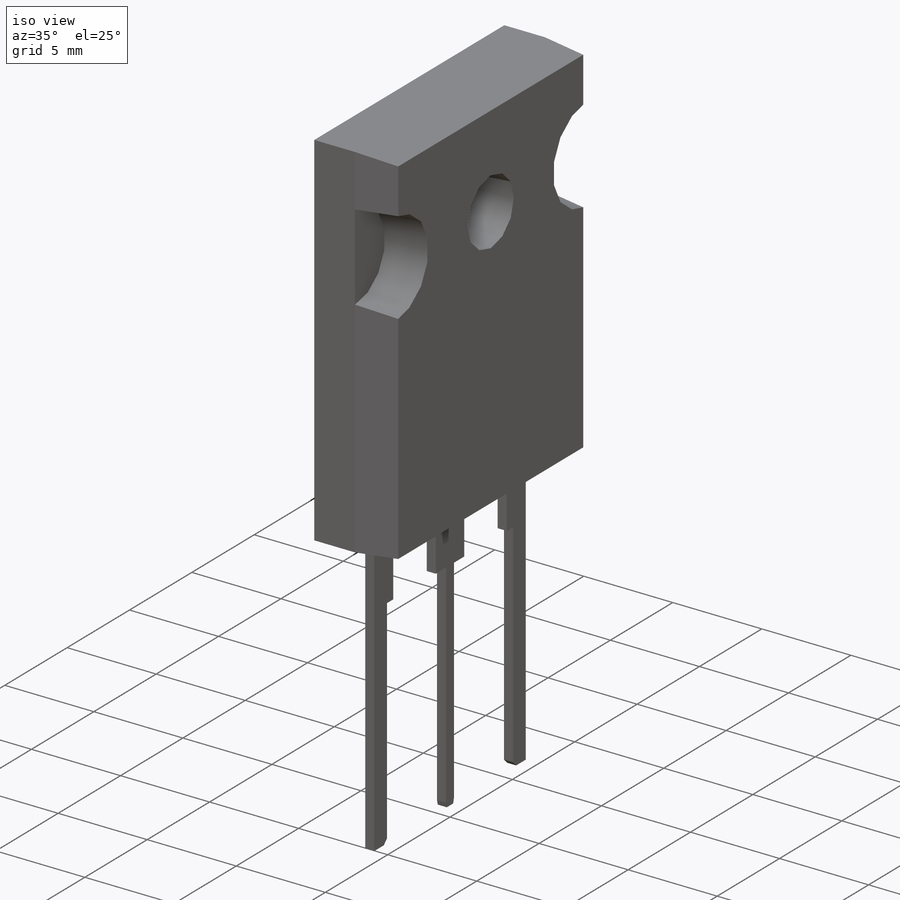
[diagram: iso view]
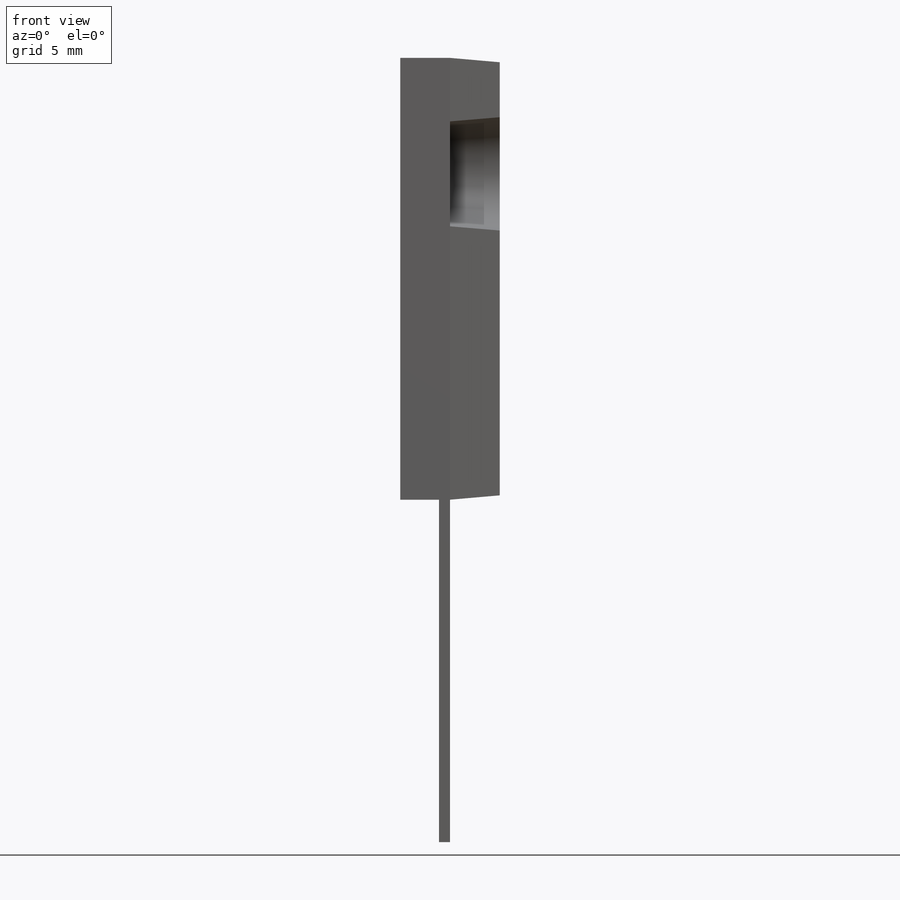
[diagram: front view]
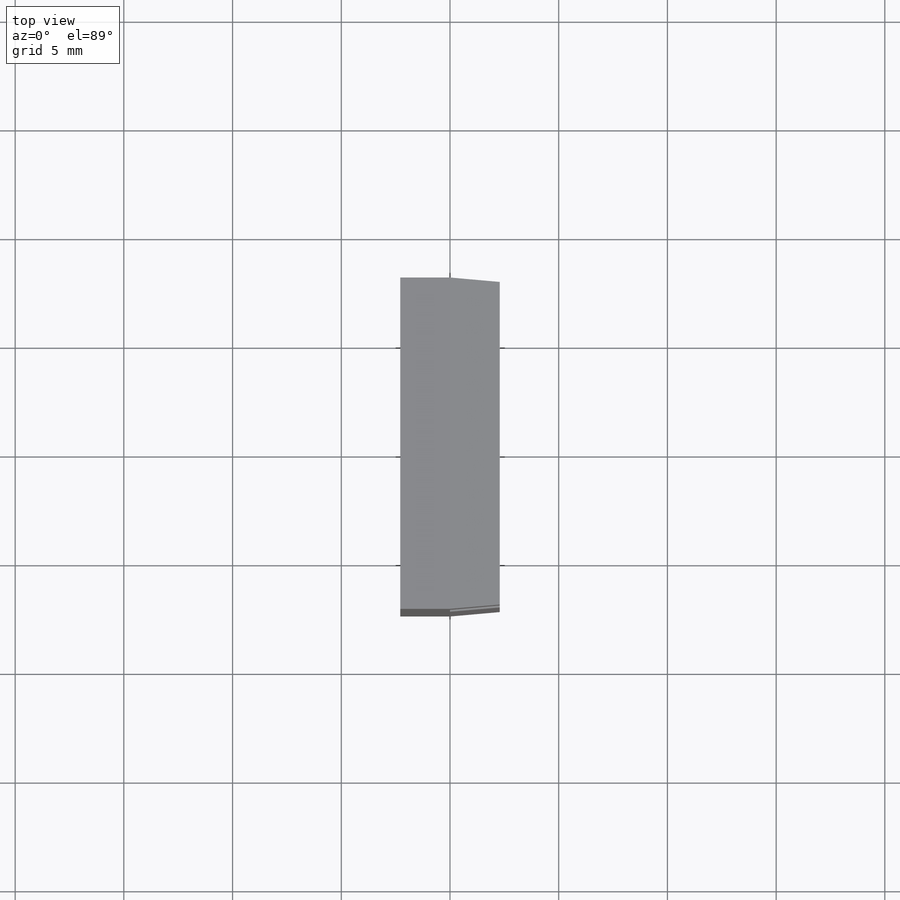
[diagram: top view]
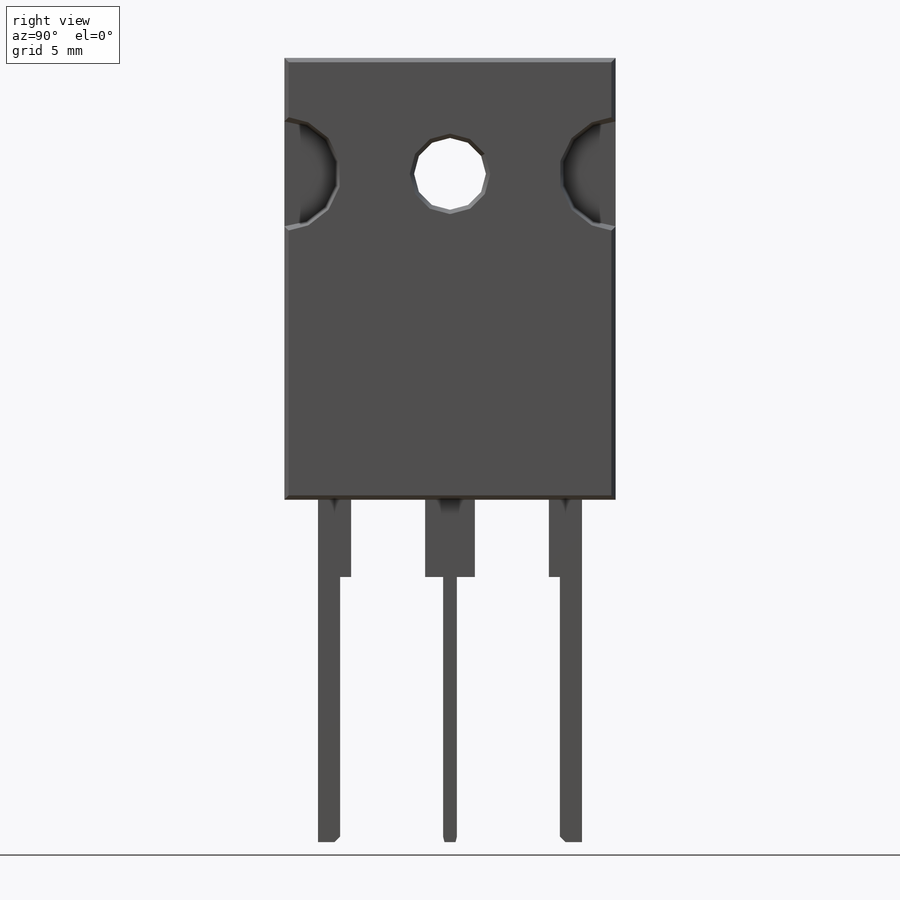
[diagram: right view]
SOLIDWORKS PART (.sldprt)
format: sldprt  version: not decoded by parser v0  size: 272,896 bytes
history: native  units: mm
features: sketch x8, extrude x3, cut_extrude x3, sheet_metal_op x2, material x1 + 1 further entry (+13 scaffold rows collapsed)
feature tree (31):
  scaffold x13  (default folders/planes/origin — collapsed)
  material  "Material <not specified>"
  sketch  "Sketch2"  dims[c1.D1=3.302mm c1.D4=3.302mm c1.D6=4.826mm c1.D2=7.62mm c1.D3=15.24mm c2.D4=5.334mm c2.D5=20.32mm c2.D1=5.334mm c2.D2=7.62mm c2.D3=2.921mm c3.D2=7.62mm]
  extrude  "Extrude1"  Depth=2.286mm
  sketch  "Sketch6"
  extrude  "Extrude2"  Depth=2.286mm
  sketch  "Sketch7"  dims[D1=3.302mm]
  cut_extrude  "Cut-Extrude3"  [1 undecoded]
  sketch  "Sketch9"  dims[D1=3.302mm]
  cut_extrude  "Cut-Extrude6"  Depth=2.286mm
  sketch  "Sketch10"  dims[D1=15.748mm D2=2.286mm]
  sheet_metal_op  "Sheet-Metal1"
  sheet_metal_op  "Base-Flange1"
  sketch  "Sketch13"  dims[D1=0.635mm D2=3.556mm D3=0.254mm D4=0.254mm]
  cut_extrude  "Cut-Extrude8"  [1 undecoded]
  sketch  "Sketch15"  dims[c1.D1=15.748mm c1.D2=5.5626mm c1.D3=1.016mm c1.D4=0.508mm c1.D5=0.508mm c1.D6=3.556mm c2.D3=0.508mm c2.D5=1.016mm c2.D7=0.254mm c2.D8=0.254mm]
  extrude  "Extrude3"  Depth=0.508mm
  "Flat-Pattern1"
  sketch  "Bend-Lines1"
decode coverage: 10 of 16 modeling features carry decoded parameters; 1 rows unclassified (native names shown)
note: 2 parameter values undecoded
note: suppression state not decoded; provenance and decode notes live in map.json
